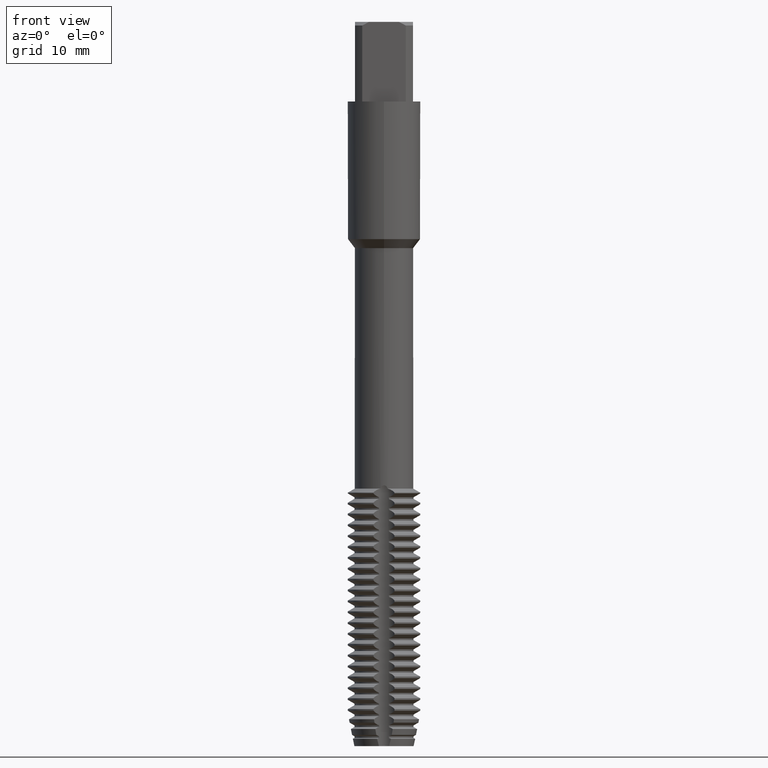
[diagram: clean part render]
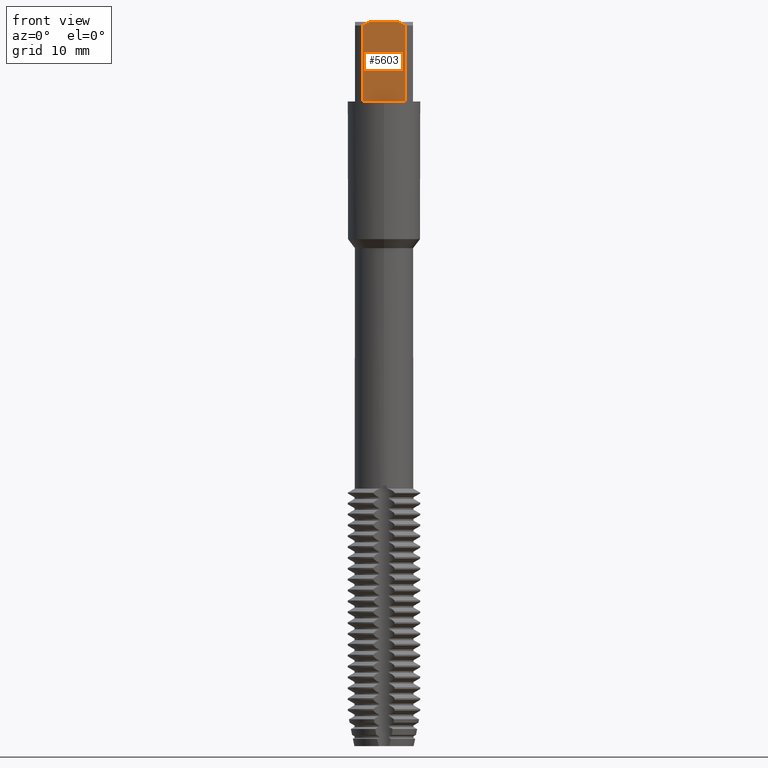
[diagram: same view with one face highlighted and labeled with its STEP entity id]
A machine part, front view. The second image highlights one B-rep face of the part: STEP entity #5603.
In plain terms, the highlighted planar face has unit normal (0, -1, 0).
Its self-contained STEP definition (entity closure, byte-faithful):
#3241=EDGE_CURVE('',#6401,#4455,#8826,.T.);
#3807=VERTEX_POINT('',#9435);
#4455=VERTEX_POINT('',#10147);
#4585=EDGE_CURVE('',#8309,#3807,#10288,.T.);
#5013=EDGE_CURVE('',#4455,#8309,#10757,.T.);
#5603=ADVANCED_FACE('',(#11403),#11404,.T.);
#5825=VERTEX_POINT('',#11645);
#6033=VERTEX_POINT('',#11876);
#6163=EDGE_CURVE('',#5825,#6033,#12013,.T.);
#6401=VERTEX_POINT('',#12267);
#7255=EDGE_CURVE('',#3807,#5825,#13201,.T.);
#7691=EDGE_CURVE('',#6033,#6401,#13671,.T.);
#8309=VERTEX_POINT('',#14347);
#8826=(B_SPLINE_CURVE(2,(#15186,#15187,#15188),.UNSPECIFIED.,.F.,.F.)B_SPLINE_CURVE_WITH_KNOTS((3,3),(0.0,1.06374198224989),.UNSPECIFIED.)RATIONAL_B_SPLINE_CURVE((1.0,1.00491513263524,1.0))BOUNDED_CURVE()REPRESENTATION_ITEM('')GEOMETRIC_REPRESENTATION_ITEM()CURVE());
#9435=CARTESIAN_POINT('',(3.0,-4.0,-0.5));
#10147=CARTESIAN_POINT('',(-2.06155281280883,-4.0,0.0));
#10288=(B_SPLINE_CURVE(2,(#17683,#17684,#17685),.UNSPECIFIED.,.F.,.F.)B_SPLINE_CURVE_WITH_KNOTS((3,3),(0.0,1.06374198224989),.UNSPECIFIED.)RATIONAL_B_SPLINE_CURVE((1.0,1.00491513263524,1.0))BOUNDED_CURVE()REPRESENTATION_ITEM('')GEOMETRIC_REPRESENTATION_ITEM()CURVE());
#10757=LINE('',#18464,#18465);
#11403=FACE_OUTER_BOUND('',#19578,.T.);
#11404=PLANE('',#19579);
#11645=CARTESIAN_POINT('',(3.0,-4.0,-11.0));
#11876=CARTESIAN_POINT('',(-3.0,-4.0,-11.0));
#12013=LINE('',#20695,#20696);
#12267=CARTESIAN_POINT('',(-3.0,-4.0,-0.5));
#13201=LINE('',#22786,#22787);
#13671=LINE('',#23579,#23580);
#14347=CARTESIAN_POINT('',(2.06155281280883,-4.0,0.0));
#15186=CARTESIAN_POINT('',(-3.0,-4.0,-0.5));
#15187=CARTESIAN_POINT('',(-2.50608042779412,-4.0,-0.203648256676475));
#15188=CARTESIAN_POINT('',(-2.06155281280883,-4.0,5.55111512312578E-017));
#17683=CARTESIAN_POINT('',(2.06155281280883,-4.0,5.55111512312578E-017));
#17684=CARTESIAN_POINT('',(2.50608042779412,-4.0,-0.203648256676475));
#17685=CARTESIAN_POINT('',(3.0,-4.0,-0.5));
#18464=CARTESIAN_POINT('',(0.0,-4.0,0.0));
#18465=VECTOR('',#27592,1.0);
#19578=EDGE_LOOP('',(#28477,#28478,#28479,#28480,#28481,#28482));
#19579=AXIS2_PLACEMENT_3D('',#28483,#28484,#28485);
#20695=CARTESIAN_POINT('',(0.0,-4.0,-11.0));
#20696=VECTOR('',#29143,1.0);
#22786=CARTESIAN_POINT('',(3.0,-4.0,-5.75));
#22787=VECTOR('',#30562,1.0);
#23579=CARTESIAN_POINT('',(-3.0,-4.0,-5.75));
#23580=VECTOR('',#31038,1.0);
#27592=DIRECTION('',(1.0,0.0,0.0));
#28477=ORIENTED_EDGE('',*,*,#7255,.F.);
#28478=ORIENTED_EDGE('',*,*,#4585,.F.);
#28479=ORIENTED_EDGE('',*,*,#5013,.F.);
#28480=ORIENTED_EDGE('',*,*,#3241,.F.);
#28481=ORIENTED_EDGE('',*,*,#7691,.F.);
#28482=ORIENTED_EDGE('',*,*,#6163,.F.);
#28483=CARTESIAN_POINT('',(0.0,-4.0,-5.0));
#28484=DIRECTION('',(0.0,-1.0,0.0));
#28485=DIRECTION('',(0.0,0.0,-1.0));
#29143=DIRECTION('',(-1.0,0.0,0.0));
#30562=DIRECTION('',(0.0,0.0,-1.0));
#31038=DIRECTION('',(-0.0,-0.0,1.0));